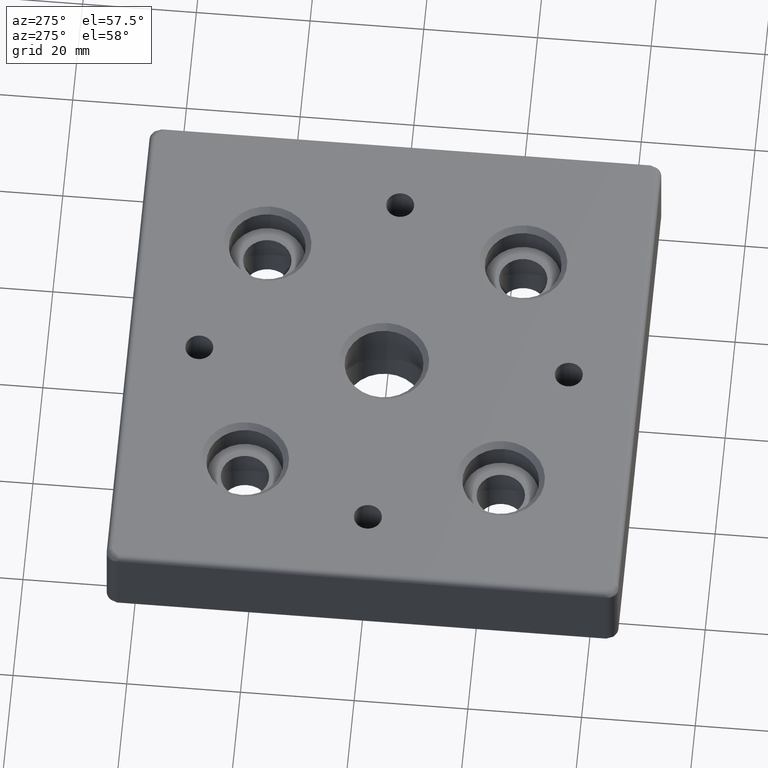
[diagram: clean part render]
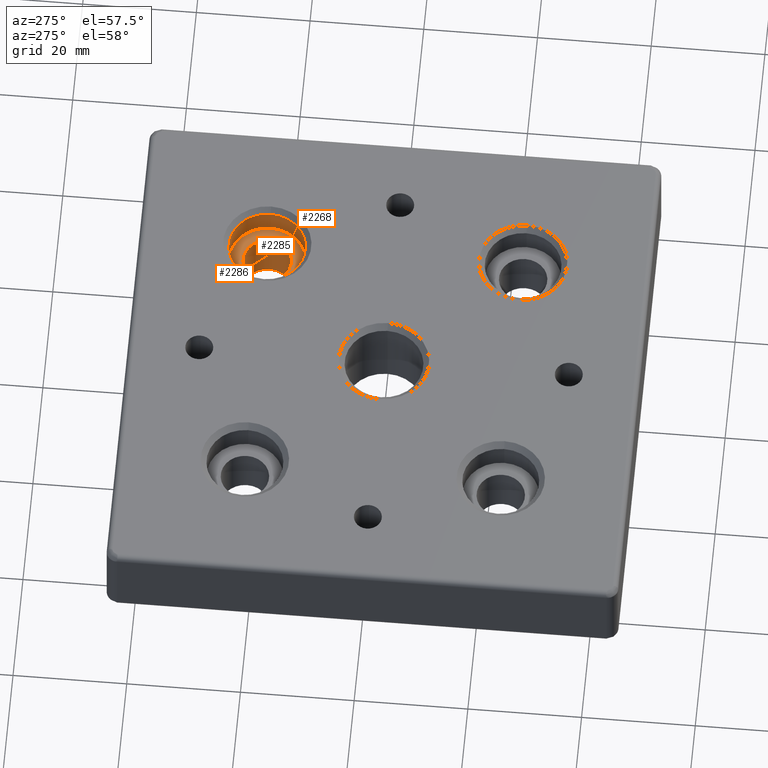
[diagram: same view with one multi-face feature highlighted, each face labeled with its STEP entity id]
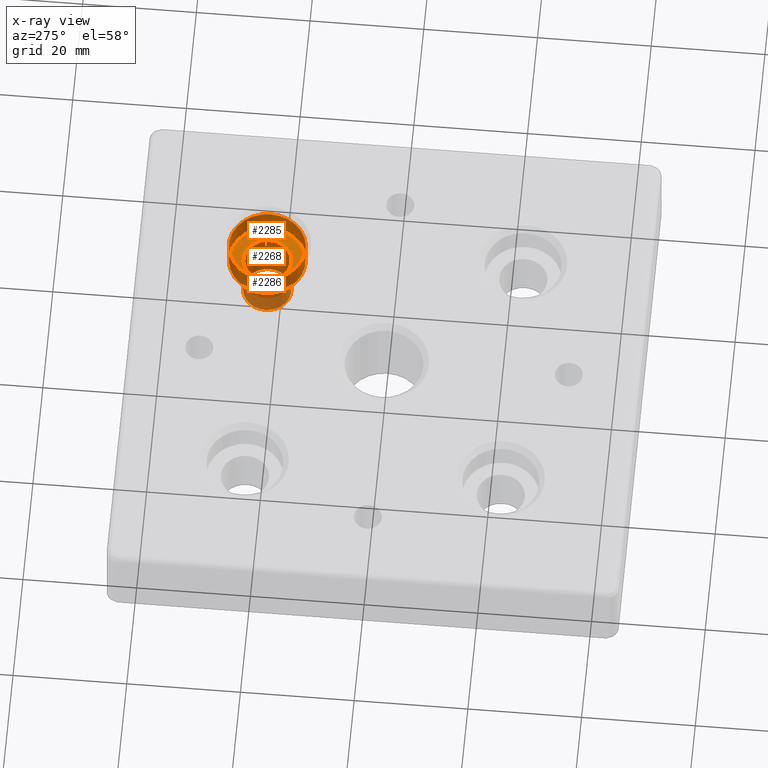
[diagram: x-ray of the same camera — body ghosted, the whole feature saturated]
A machine part, auxiliary view. The highlighted faces form ONE feature: a stepped (counterbored) hole: 2 coaxial cylindrical walls of radii 4.25 -> 6.75 mm joined by 1 annular planar shoulder face(s). The faces share edges in the B-rep.
The next image is the same camera in x-ray: the body ghosted and the whole hole feature saturated, so the bore chain is visible through the body.
Their STEP definitions:
[1] entity #2268 (Cylinder):
#33=FACE_BOUND('',#339,.T.);
#196=FACE_OUTER_BOUND('',#338,.T.);
#338=EDGE_LOOP('',(#1866));
#339=EDGE_LOOP('',(#1867));
#834=CIRCLE('',#2513,6.75);
#848=CIRCLE('',#2529,6.75);
#1057=VERTEX_POINT('',#3853);
#1075=VERTEX_POINT('',#3891);
#1360=EDGE_CURVE('',#1057,#1057,#834,.T.);
#1378=EDGE_CURVE('',#1075,#1075,#848,.T.);
#1866=ORIENTED_EDGE('',*,*,#1378,.F.);
#1867=ORIENTED_EDGE('',*,*,#1360,.F.);
#2157=CYLINDRICAL_SURFACE('',#2528,6.75);
#2268=ADVANCED_FACE('',(#196,#33),#2157,.F.);
#2513=AXIS2_PLACEMENT_3D('',#3854,#3139,#3140);
#2528=AXIS2_PLACEMENT_3D('',#3890,#3173,#3174);
#2529=AXIS2_PLACEMENT_3D('',#3892,#3175,#3176);
#3139=DIRECTION('center_axis',(0.,0.,-1.));
#3140=DIRECTION('ref_axis',(-1.,0.,0.));
#3173=DIRECTION('center_axis',(0.,0.,1.));
#3174=DIRECTION('ref_axis',(1.,0.,0.));
#3175=DIRECTION('center_axis',(0.,0.,1.));
#3176=DIRECTION('ref_axis',(1.,0.,0.));
#3853=CARTESIAN_POINT('',(29.25,22.5,-1.));
#3854=CARTESIAN_POINT('Origin',(22.5,22.5,-1.));
#3890=CARTESIAN_POINT('Origin',(22.5,22.5,-2.75));
#3891=CARTESIAN_POINT('',(29.25,22.5,-5.5));
#3892=CARTESIAN_POINT('Origin',(22.5,22.5,-5.5));
[2] entity #2286 (Cylinder):
#51=FACE_BOUND('',#375,.T.);
#214=FACE_OUTER_BOUND('',#374,.T.);
#374=EDGE_LOOP('',(#1902));
#375=EDGE_LOOP('',(#1903));
#865=CIRCLE('',#2563,4.25);
#866=CIRCLE('',#2565,4.25);
#1092=VERTEX_POINT('',#3942);
#1093=VERTEX_POINT('',#3945);
#1395=EDGE_CURVE('',#1092,#1092,#865,.T.);
#1396=EDGE_CURVE('',#1093,#1093,#866,.T.);
#1902=ORIENTED_EDGE('',*,*,#1396,.F.);
#1903=ORIENTED_EDGE('',*,*,#1395,.T.);
#2168=CYLINDRICAL_SURFACE('',#2564,4.25);
#2286=ADVANCED_FACE('',(#214,#51),#2168,.F.);
#2563=AXIS2_PLACEMENT_3D('',#3943,#3243,#3244);
#2564=AXIS2_PLACEMENT_3D('',#3944,#3245,#3246);
#2565=AXIS2_PLACEMENT_3D('',#3946,#3247,#3248);
#3243=DIRECTION('center_axis',(0.,0.,1.));
#3244=DIRECTION('ref_axis',(1.,0.,0.));
#3245=DIRECTION('center_axis',(0.,0.,1.));
#3246=DIRECTION('ref_axis',(1.,0.,0.));
#3247=DIRECTION('center_axis',(0.,0.,1.));
#3248=DIRECTION('ref_axis',(1.,0.,0.));
#3942=CARTESIAN_POINT('',(18.25,22.5,-5.50000000000001));
#3943=CARTESIAN_POINT('Origin',(22.5,22.5,-5.50000000000001));
#3944=CARTESIAN_POINT('Origin',(22.5,22.5,-128.160056179763));
#3945=CARTESIAN_POINT('',(18.25,22.5,-15.));
#3946=CARTESIAN_POINT('Origin',(22.5,22.5,-15.));
[3] entity #2285 (Plane):
#50=FACE_BOUND('',#373,.T.);
#103=PLANE('',#2562);
#213=FACE_OUTER_BOUND('',#372,.T.);
#372=EDGE_LOOP('',(#1900));
#373=EDGE_LOOP('',(#1901));
#848=CIRCLE('',#2529,6.75);
#865=CIRCLE('',#2563,4.25);
#1075=VERTEX_POINT('',#3891);
#1092=VERTEX_POINT('',#3942);
#1378=EDGE_CURVE('',#1075,#1075,#848,.T.);
#1395=EDGE_CURVE('',#1092,#1092,#865,.T.);
#1900=ORIENTED_EDGE('',*,*,#1378,.T.);
#1901=ORIENTED_EDGE('',*,*,#1395,.F.);
#2285=ADVANCED_FACE('',(#213,#50),#103,.T.);
#2529=AXIS2_PLACEMENT_3D('',#3892,#3175,#3176);
#2562=AXIS2_PLACEMENT_3D('',#3941,#3241,#3242);
#2563=AXIS2_PLACEMENT_3D('',#3943,#3243,#3244);
#3175=DIRECTION('center_axis',(0.,0.,1.));
#3176=DIRECTION('ref_axis',(1.,0.,0.));
#3241=DIRECTION('center_axis',(0.,0.,1.));
#3242=DIRECTION('ref_axis',(1.,0.,0.));
#3243=DIRECTION('center_axis',(0.,0.,1.));
#3244=DIRECTION('ref_axis',(1.,0.,0.));
#3891=CARTESIAN_POINT('',(29.25,22.5,-5.5));
#3892=CARTESIAN_POINT('Origin',(22.5,22.5,-5.5));
#3941=CARTESIAN_POINT('Origin',(22.5,22.5,-5.5));
#3942=CARTESIAN_POINT('',(18.25,22.5,-5.50000000000001));
#3943=CARTESIAN_POINT('Origin',(22.5,22.5,-5.50000000000001));